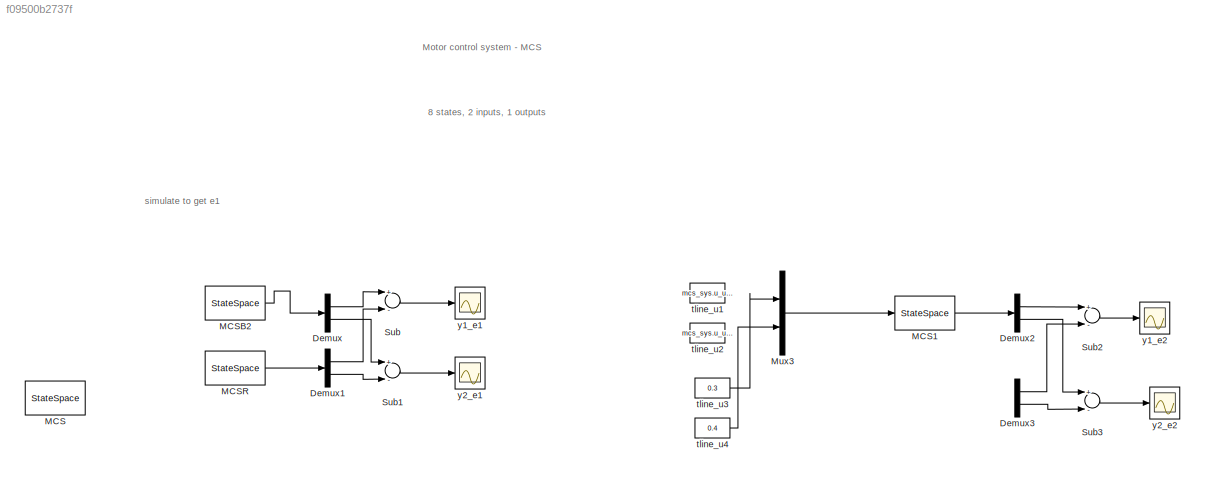
MODEL slx_f09500b2737f
KIND model
BLOCK [Demux] Demux
  DisplayOption = bar
  Outputs = 2
  Ports = [1, 2]
BLOCK [Demux] Demux1
  DisplayOption = bar
  Outputs = 2
  Ports = [1, 2]
BLOCK [Demux] Demux2
  DisplayOption = bar
  Outputs = 2
  Ports = [1, 2]
BLOCK [Demux] Demux3
  DisplayOption = bar
  Outputs = 2
  Ports = [1, 2]
BLOCK [StateSpace] MCS
  A = mcs_sys.sys.a
  B = mcs_sys.sys.b
  C = mcs_sys.sys.c
  D = mcs_sys.sys.d
  Ports = [1, 1]
  X0 = mcs_sys.x0_lb
BLOCK [StateSpace] MCS1
  A = mcs_sys.sys.a
  B = mcs_sys.sys.b
  C = mcs_sys.sys.c
  D = mcs_sys.sys.d
  Ports = [1, 1]
  X0 = 0
BLOCK [StateSpace] MCSB2
  A = sysb.sys.a
  B = sysb.sys.b
  C = sysb.sys.c
  D = sysb.sys.d
  Ports = [1, 1]
  X0 = sysb_x0
BLOCK [StateSpace] MCSR
  A = sysr.sys.a
  B = sysr.sys.b
  C = sysr.sys.c
  D = sysr.sys.d
  Ports = [1, 1]
  X0 = sysr_x0
BLOCK [Mux] Mux3
  DisplayOption = bar
  Inputs = 2
  Ports = [2, 1]
BLOCK [Sum] Sub
  InputSameDT = off
  Inputs = +-
  OutDataTypeStr = Inherit: Inherit via internal rule
  Ports = [2, 1]
  SaturateOnIntegerOverflow = off
BLOCK [Sum] Sub1
  InputSameDT = off
  Inputs = +-
  OutDataTypeStr = Inherit: Inherit via internal rule
  Ports = [2, 1]
  SaturateOnIntegerOverflow = off
BLOCK [Sum] Sub2
  InputSameDT = off
  Inputs = +-
  OutDataTypeStr = Inherit: Inherit via internal rule
  Ports = [2, 1]
  SaturateOnIntegerOverflow = off
BLOCK [Sum] Sub3
  InputSameDT = off
  Inputs = +-
  OutDataTypeStr = Inherit: Inherit via internal rule
  Ports = [2, 1]
  SaturateOnIntegerOverflow = off
BLOCK [Constant] tline_u1
  Value = mcs_sys.u_ub(1)
BLOCK [Constant] tline_u2
  Value = mcs_sys.u_ub(2)
BLOCK [Constant] tline_u3
  Value = 0.3
BLOCK [Constant] tline_u4
  Value = 0.4
BLOCK [Scope] y1_e1
  Floating = off
  LimitDataPoints = off
  NumInputPorts = 1
  Ports = [1]
  SaveName = ScopeData1
  ShowLegends = off
  TimeRange = 0.04
  YMax = 0.1151586051743532
  YMin = 0.06715860517435321
BLOCK [Scope] y1_e2
  Floating = off
  LimitDataPoints = off
  NumInputPorts = 1
  Ports = [1]
  SaveName = ScopeData2
  ShowLegends = off
BLOCK [Scope] y2_e1
  Floating = off
  LimitDataPoints = off
  NumInputPorts = 1
  Ports = [1]
  SaveName = ScopeData12
  ShowLegends = off
BLOCK [Scope] y2_e2
  Floating = off
  LimitDataPoints = off
  NumInputPorts = 1
  Ports = [1]
  SaveName = ScopeData3
  ShowLegends = off
ANNOTATION (root): 8 states, 2 inputs, 1 outputs
ANNOTATION (root): Motor control system - MCS
ANNOTATION (root): simulate to get e1
LINE Demux1:1 -> Sub:2
LINE Demux1:2 -> Sub1:2
LINE Demux2:1 -> Sub2:1
LINE Demux2:2 -> Sub3:1
LINE Demux3:1 -> Sub2:2
LINE Demux3:2 -> Sub3:2
LINE Demux:1 -> Sub:1
LINE Demux:2 -> Sub1:1
LINE MCS1:1 -> Demux2:1
LINE MCSB2:1 -> Demux:1
LINE MCSR:1 -> Demux1:1
LINE Mux3:1 -> MCS1:1
LINE Sub1:1 -> y2_e1:1
LINE Sub2:1 -> y1_e2:1
LINE Sub3:1 -> y2_e2:1
LINE Sub:1 -> y1_e1:1
LINE tline_u3:1 -> Mux3:1
LINE tline_u4:1 -> Mux3:2
